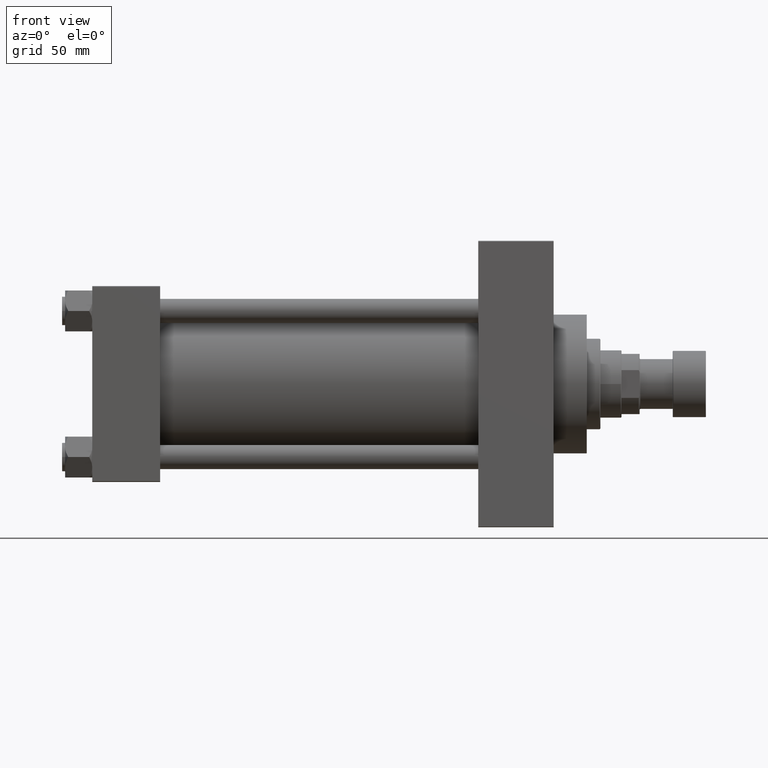
[diagram: clean part render]
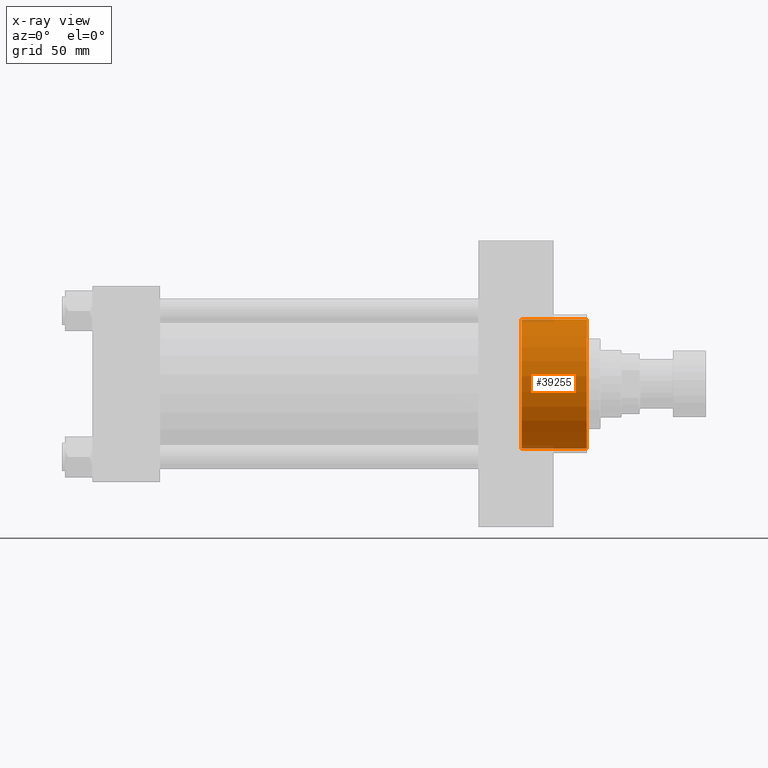
[diagram: x-ray — body ghosted, one internal face saturated and labeled with its STEP entity id]
A machine part, front view, then the same camera in x-ray: the body is ghosted and one INTERNAL B-rep face — a face not visible from any outside direction — is saturated and labeled: STEP entity #39255.
In plain terms, the highlighted cylindrical surface (partial cylindrical patch) has radius 42.75 mm, axis along (1, 0, 0).
Its self-contained STEP definition (entity closure, byte-faithful):
#325 = CYLINDRICAL_SURFACE ( 'NONE', #14363, 42.75000000000000000 ) ;
#3201 = DIRECTION ( 'NONE',  ( 1.000000000000000000, -0.000000000000000000, -0.000000000000000000 ) ) ;
#3726 = DIRECTION ( 'NONE',  ( 1.000000000000000000, -0.000000000000000000, -0.000000000000000000 ) ) ;
#4276 = CARTESIAN_POINT ( 'NONE',  ( 284.7400000000000091, 0.000000000000000000, -42.75000000000000000 ) ) ;
#6870 = DIRECTION ( 'NONE',  ( 0.000000000000000000, 0.000000000000000000, -1.000000000000000000 ) ) ;
#6898 = FACE_OUTER_BOUND ( 'NONE', #18033, .T. ) ;
#7674 = CARTESIAN_POINT ( 'NONE',  ( 328.0000000000000000, 0.000000000000000000, 0.000000000000000000 ) ) ;
#9639 = CARTESIAN_POINT ( 'NONE',  ( 284.7400000000000091, 0.000000000000000000, 0.000000000000000000 ) ) ;
#10615 = CARTESIAN_POINT ( 'NONE',  ( 284.7400000000000091, 0.000000000000000000, -42.75000000000000000 ) ) ;
#11021 = DIRECTION ( 'NONE',  ( 1.000000000000000000, 0.000000000000000000, 0.000000000000000000 ) ) ;
#12111 = ORIENTED_EDGE ( 'NONE', *, *, #30543, .F. ) ;
#12438 = VERTEX_POINT ( 'NONE', #24171 ) ;
#13860 = VERTEX_POINT ( 'NONE', #14867 ) ;
#14363 = AXIS2_PLACEMENT_3D ( 'NONE', #14939, #3726, #26355 ) ;
#14390 = ORIENTED_EDGE ( 'NONE', *, *, #28737, .F. ) ;
#14642 = CARTESIAN_POINT ( 'NONE',  ( 284.7400000000000091, 5.235365066354935472E-15, 42.75000000000000000 ) ) ;
#14739 = EDGE_CURVE ( 'NONE', #12438, #13860, #24019, .T. ) ;
#14867 = CARTESIAN_POINT ( 'NONE',  ( 328.0000000000000000, 0.000000000000000000, -42.75000000000000000 ) ) ;
#14939 = CARTESIAN_POINT ( 'NONE',  ( 284.7400000000000091, 0.000000000000000000, 0.000000000000000000 ) ) ;
#16491 = CIRCLE ( 'NONE', #29679, 42.75000000000000000 ) ;
#16606 = VERTEX_POINT ( 'NONE', #47166 ) ;
#17253 = ORIENTED_EDGE ( 'NONE', *, *, #14739, .T. ) ;
#18033 = EDGE_LOOP ( 'NONE', ( #14390, #26048, #17253, #12111 ) ) ;
#21971 = VECTOR ( 'NONE', #36147, 1000.000000000000000 ) ;
#24019 = CIRCLE ( 'NONE', #44224, 42.75000000000000000 ) ;
#24171 = CARTESIAN_POINT ( 'NONE',  ( 328.0000000000000000, 5.235365066354935472E-15, 42.75000000000000000 ) ) ;
#24530 = VERTEX_POINT ( 'NONE', #4276 ) ;
#26048 = ORIENTED_EDGE ( 'NONE', *, *, #44340, .T. ) ;
#26355 = DIRECTION ( 'NONE',  ( 0.000000000000000000, 0.000000000000000000, -1.000000000000000000 ) ) ;
#28737 = EDGE_CURVE ( 'NONE', #16606, #24530, #16491, .T. ) ;
#29331 = LINE ( 'NONE', #10615, #21971 ) ;
#29679 = AXIS2_PLACEMENT_3D ( 'NONE', #9639, #11021, #6870 ) ;
#30543 = EDGE_CURVE ( 'NONE', #24530, #13860, #29331, .T. ) ;
#32961 = DIRECTION ( 'NONE',  ( 0.000000000000000000, 0.000000000000000000, -1.000000000000000000 ) ) ;
#33165 = VECTOR ( 'NONE', #3201, 1000.000000000000000 ) ;
#36147 = DIRECTION ( 'NONE',  ( 1.000000000000000000, -0.000000000000000000, -0.000000000000000000 ) ) ;
#39255 = ADVANCED_FACE ( 'NONE', ( #6898 ), #325, .F. ) ;
#40407 = LINE ( 'NONE', #14642, #33165 ) ;
#44152 = DIRECTION ( 'NONE',  ( 1.000000000000000000, 0.000000000000000000, 0.000000000000000000 ) ) ;
#44224 = AXIS2_PLACEMENT_3D ( 'NONE', #7674, #44152, #32961 ) ;
#44340 = EDGE_CURVE ( 'NONE', #16606, #12438, #40407, .T. ) ;
#47166 = CARTESIAN_POINT ( 'NONE',  ( 284.7400000000000091, 5.235365066354935472E-15, 42.75000000000000000 ) ) ;